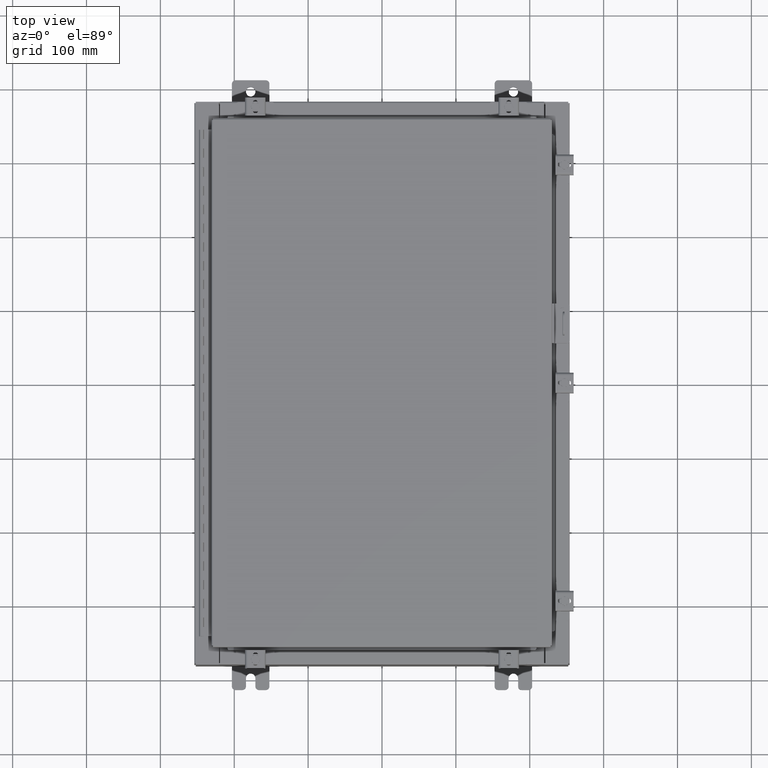
[diagram: clean part render]
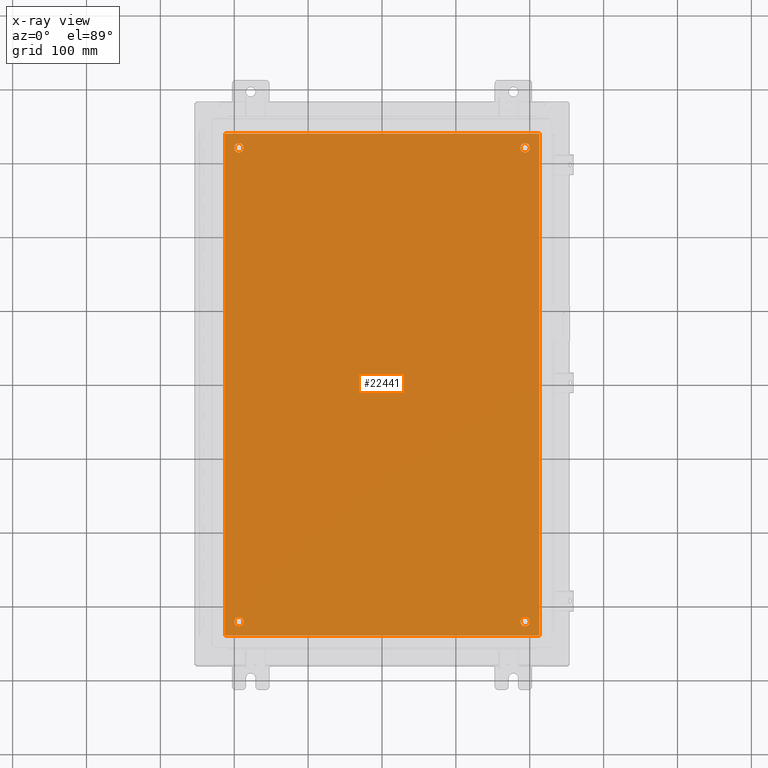
[diagram: x-ray — body ghosted, one internal face saturated and labeled with its STEP entity id]
A machine part, top view, then the same camera in x-ray: the body is ghosted and one INTERNAL B-rep face — a face not visible from any outside direction — is saturated and labeled: STEP entity #22441.
In plain terms, the highlighted planar face has unit normal (0, 0, -1).
Its self-contained STEP definition (entity closure, byte-faithful):
#374 = EDGE_CURVE ( 'NONE', #4440, #4452, #17238, .T. ) ;
#680 = CARTESIAN_POINT ( 'NONE',  ( -8.383000000000000900, 13.38300000000000100, -0.1039999999999999000 ) ) ;
#1036 = CARTESIAN_POINT ( 'NONE',  ( 7.375000000000004400, 12.62500000000000200, -0.1040000000000000400 ) ) ;
#1100 = EDGE_CURVE ( 'NONE', #34062, #16920, #17632, .T. ) ;
#1673 = DIRECTION ( 'NONE',  ( -0.0000000000000000000, -0.0000000000000000000, 1.000000000000000000 ) ) ;
#2214 = AXIS2_PLACEMENT_3D ( 'NONE', #30581, #33532, #15999 ) ;
#2646 = DIRECTION ( 'NONE',  ( -1.000000000000000000, 0.0000000000000000000, 0.0000000000000000000 ) ) ;
#2868 = FACE_BOUND ( 'NONE', #9368, .T. ) ;
#2986 = CARTESIAN_POINT ( 'NONE',  ( 7.625000000000002700, -12.62500000000000200, -0.1040000000000000400 ) ) ;
#3217 = EDGE_LOOP ( 'NONE', ( #3958, #23175 ) ) ;
#3937 = AXIS2_PLACEMENT_3D ( 'NONE', #8284, #28764, #11223 ) ;
#3958 = ORIENTED_EDGE ( 'NONE', *, *, #30971, .T. ) ;
#3971 = DIRECTION ( 'NONE',  ( -0.0000000000000000000, -0.0000000000000000000, 1.000000000000000000 ) ) ;
#4151 = AXIS2_PLACEMENT_3D ( 'NONE', #19226, #1673, #22175 ) ;
#4440 = VERTEX_POINT ( 'NONE', #680 ) ;
#4452 = VERTEX_POINT ( 'NONE', #18246 ) ;
#4549 = CARTESIAN_POINT ( 'NONE',  ( 7.875000000000001800, -12.62500000000000200, -0.1040000000000000400 ) ) ;
#5162 = CARTESIAN_POINT ( 'NONE',  ( -7.625000000000002700, -12.62500000000000200, -0.1040000000000000400 ) ) ;
#5842 = EDGE_CURVE ( 'NONE', #31358, #9799, #14614, .T. ) ;
#5845 = LINE ( 'NONE', #28348, #12752 ) ;
#5923 = DIRECTION ( 'NONE',  ( -1.000000000000000000, 0.0000000000000000000, 0.0000000000000000000 ) ) ;
#6072 = DIRECTION ( 'NONE',  ( 0.0000000000000000000, 1.000000000000000000, 0.0000000000000000000 ) ) ;
#6242 = EDGE_CURVE ( 'NONE', #4452, #16790, #9546, .T. ) ;
#6344 = EDGE_CURVE ( 'NONE', #32874, #4440, #5845, .T. ) ;
#6773 = CARTESIAN_POINT ( 'NONE',  ( 8.383000000000002700, -13.38299999999999200, -0.1039999999999992200 ) ) ;
#8159 = DIRECTION ( 'NONE',  ( -1.000000000000000000, 0.0000000000000000000, 0.0000000000000000000 ) ) ;
#8284 = CARTESIAN_POINT ( 'NONE',  ( -7.625000000000002700, 12.62500000000000200, -0.1040000000000000400 ) ) ;
#8664 = VERTEX_POINT ( 'NONE', #10429 ) ;
#9095 = CARTESIAN_POINT ( 'NONE',  ( 8.383000000000002700, 13.38300000000000100, -0.1039999999999992200 ) ) ;
#9185 = CARTESIAN_POINT ( 'NONE',  ( -7.375000000000003600, 12.62500000000000200, -0.1040000000000000400 ) ) ;
#9368 = EDGE_LOOP ( 'NONE', ( #12530, #25266 ) ) ;
#9546 = LINE ( 'NONE', #30917, #16425 ) ;
#9799 = VERTEX_POINT ( 'NONE', #22205 ) ;
#10099 = PLANE ( 'NONE',  #2214 ) ;
#10429 = CARTESIAN_POINT ( 'NONE',  ( -7.875000000000002700, 12.62500000000000200, -0.1040000000000000400 ) ) ;
#10699 = FACE_BOUND ( 'NONE', #12252, .T. ) ;
#10786 = CIRCLE ( 'NONE', #21874, 0.2499999999999998100 ) ;
#11223 = DIRECTION ( 'NONE',  ( -1.000000000000000000, 0.0000000000000000000, 0.0000000000000000000 ) ) ;
#12252 = EDGE_LOOP ( 'NONE', ( #16578, #35327 ) ) ;
#12530 = ORIENTED_EDGE ( 'NONE', *, *, #14082, .T. ) ;
#12675 = DIRECTION ( 'NONE',  ( -0.0000000000000000000, -0.0000000000000000000, 1.000000000000000000 ) ) ;
#12752 = VECTOR ( 'NONE', #31309, 39.37007874015748100 ) ;
#12961 = CARTESIAN_POINT ( 'NONE',  ( -7.625000000000002700, -12.62500000000000200, -0.1040000000000000400 ) ) ;
#13196 = EDGE_CURVE ( 'NONE', #9799, #31358, #37295, .T. ) ;
#13284 = EDGE_CURVE ( 'NONE', #34914, #20228, #18971, .T. ) ;
#13381 = DIRECTION ( 'NONE',  ( 1.000000000000000000, -0.0000000000000000000, -0.0000000000000000000 ) ) ;
#13945 = CARTESIAN_POINT ( 'NONE',  ( -7.875000000000002700, -12.62500000000000200, -0.1040000000000000400 ) ) ;
#14082 = EDGE_CURVE ( 'NONE', #28190, #8664, #19581, .T. ) ;
#14614 = CIRCLE ( 'NONE', #35162, 0.2499999999999998100 ) ;
#15916 = DIRECTION ( 'NONE',  ( -1.000000000000000000, 0.0000000000000000000, 0.0000000000000000000 ) ) ;
#15999 = DIRECTION ( 'NONE',  ( -1.000000000000000000, 0.0000000000000000000, -0.0000000000000000000 ) ) ;
#16298 = CIRCLE ( 'NONE', #26513, 0.2499999999999987000 ) ;
#16348 = VECTOR ( 'NONE', #33473, 39.37007874015748100 ) ;
#16425 = VECTOR ( 'NONE', #13381, 39.37007874015748100 ) ;
#16578 = ORIENTED_EDGE ( 'NONE', *, *, #26975, .T. ) ;
#16790 = VERTEX_POINT ( 'NONE', #6773 ) ;
#16920 = VERTEX_POINT ( 'NONE', #4549 ) ;
#17214 = EDGE_CURVE ( 'NONE', #16790, #32874, #18855, .T. ) ;
#17238 = LINE ( 'NONE', #30517, #16348 ) ;
#17632 = CIRCLE ( 'NONE', #36704, 0.2499999999999987000 ) ;
#18246 = CARTESIAN_POINT ( 'NONE',  ( -8.383000000000000900, -13.38299999999999400, -0.1040000000000008600 ) ) ;
#18855 = LINE ( 'NONE', #32210, #24831 ) ;
#18971 = CIRCLE ( 'NONE', #4151, 0.2499999999999987000 ) ;
#19226 = CARTESIAN_POINT ( 'NONE',  ( 7.625000000000002700, 12.62500000000000200, -0.1040000000000000400 ) ) ;
#19394 = FACE_BOUND ( 'NONE', #3217, .T. ) ;
#19403 = ORIENTED_EDGE ( 'NONE', *, *, #13196, .T. ) ;
#19581 = CIRCLE ( 'NONE', #3937, 0.2499999999999998100 ) ;
#19858 = CARTESIAN_POINT ( 'NONE',  ( 7.875000000000001800, 12.62500000000000200, -0.1040000000000000400 ) ) ;
#20003 = AXIS2_PLACEMENT_3D ( 'NONE', #2986, #23485, #5923 ) ;
#20092 = EDGE_LOOP ( 'NONE', ( #19403, #37784 ) ) ;
#20200 = DIRECTION ( 'NONE',  ( -0.0000000000000000000, -0.0000000000000000000, 1.000000000000000000 ) ) ;
#20228 = VERTEX_POINT ( 'NONE', #19858 ) ;
#21543 = CARTESIAN_POINT ( 'NONE',  ( 7.625000000000002700, -12.62500000000000200, -0.1040000000000000400 ) ) ;
#21874 = AXIS2_PLACEMENT_3D ( 'NONE', #30195, #12675, #33155 ) ;
#22175 = DIRECTION ( 'NONE',  ( -1.000000000000000000, 0.0000000000000000000, 0.0000000000000000000 ) ) ;
#22205 = CARTESIAN_POINT ( 'NONE',  ( -7.375000000000003600, -12.62500000000000200, -0.1040000000000000400 ) ) ;
#22441 = ADVANCED_FACE ( 'NONE', ( #26251, #10699, #19394, #2868, #33140 ), #10099, .T. ) ;
#23175 = ORIENTED_EDGE ( 'NONE', *, *, #13284, .T. ) ;
#23485 = DIRECTION ( 'NONE',  ( -0.0000000000000000000, -0.0000000000000000000, 1.000000000000000000 ) ) ;
#24478 = DIRECTION ( 'NONE',  ( -1.000000000000000000, 0.0000000000000000000, 0.0000000000000000000 ) ) ;
#24831 = VECTOR ( 'NONE', #6072, 39.37007874015748100 ) ;
#25266 = ORIENTED_EDGE ( 'NONE', *, *, #31121, .T. ) ;
#25477 = EDGE_LOOP ( 'NONE', ( #29878, #32995, #29259, #31822 ) ) ;
#25678 = DIRECTION ( 'NONE',  ( -0.0000000000000000000, -0.0000000000000000000, 1.000000000000000000 ) ) ;
#26251 = FACE_BOUND ( 'NONE', #20092, .T. ) ;
#26513 = AXIS2_PLACEMENT_3D ( 'NONE', #37709, #20200, #2646 ) ;
#26906 = CIRCLE ( 'NONE', #20003, 0.2499999999999987000 ) ;
#26975 = EDGE_CURVE ( 'NONE', #16920, #34062, #26906, .T. ) ;
#28190 = VERTEX_POINT ( 'NONE', #9185 ) ;
#28348 = CARTESIAN_POINT ( 'NONE',  ( 8.500000000000001800, 13.38300000000000300, -0.1040000000000008600 ) ) ;
#28469 = AXIS2_PLACEMENT_3D ( 'NONE', #12961, #33450, #15916 ) ;
#28764 = DIRECTION ( 'NONE',  ( -0.0000000000000000000, -0.0000000000000000000, 1.000000000000000000 ) ) ;
#29259 = ORIENTED_EDGE ( 'NONE', *, *, #6344, .F. ) ;
#29878 = ORIENTED_EDGE ( 'NONE', *, *, #6242, .F. ) ;
#30195 = CARTESIAN_POINT ( 'NONE',  ( -7.625000000000002700, 12.62500000000000200, -0.1040000000000000400 ) ) ;
#30517 = CARTESIAN_POINT ( 'NONE',  ( -8.383000000000000900, 13.38300000000000100, -0.1039999999999999000 ) ) ;
#30581 = CARTESIAN_POINT ( 'NONE',  ( 0.0000000000000000000, 0.0000000000000000000, -0.1040000000000000400 ) ) ;
#30917 = CARTESIAN_POINT ( 'NONE',  ( -8.500000000000000000, -13.38299999999999400, -0.1040000000000008600 ) ) ;
#30971 = EDGE_CURVE ( 'NONE', #20228, #34914, #16298, .T. ) ;
#31121 = EDGE_CURVE ( 'NONE', #8664, #28190, #10786, .T. ) ;
#31309 = DIRECTION ( 'NONE',  ( -1.000000000000000000, -0.0000000000000000000, -0.0000000000000000000 ) ) ;
#31358 = VERTEX_POINT ( 'NONE', #13945 ) ;
#31822 = ORIENTED_EDGE ( 'NONE', *, *, #17214, .F. ) ;
#32210 = CARTESIAN_POINT ( 'NONE',  ( 8.383000000000002700, -13.38299999999999200, -0.1039999999999992200 ) ) ;
#32874 = VERTEX_POINT ( 'NONE', #9095 ) ;
#32995 = ORIENTED_EDGE ( 'NONE', *, *, #374, .F. ) ;
#33140 = FACE_OUTER_BOUND ( 'NONE', #25477, .T. ) ;
#33155 = DIRECTION ( 'NONE',  ( -1.000000000000000000, 0.0000000000000000000, 0.0000000000000000000 ) ) ;
#33450 = DIRECTION ( 'NONE',  ( -0.0000000000000000000, -0.0000000000000000000, 1.000000000000000000 ) ) ;
#33473 = DIRECTION ( 'NONE',  ( 0.0000000000000000000, -1.000000000000000000, 0.0000000000000000000 ) ) ;
#33532 = DIRECTION ( 'NONE',  ( 0.0000000000000000000, 0.0000000000000000000, -1.000000000000000000 ) ) ;
#34062 = VERTEX_POINT ( 'NONE', #35747 ) ;
#34914 = VERTEX_POINT ( 'NONE', #1036 ) ;
#35162 = AXIS2_PLACEMENT_3D ( 'NONE', #5162, #25678, #8159 ) ;
#35327 = ORIENTED_EDGE ( 'NONE', *, *, #1100, .T. ) ;
#35747 = CARTESIAN_POINT ( 'NONE',  ( 7.375000000000004400, -12.62500000000000200, -0.1040000000000000400 ) ) ;
#36704 = AXIS2_PLACEMENT_3D ( 'NONE', #21543, #3971, #24478 ) ;
#37295 = CIRCLE ( 'NONE', #28469, 0.2499999999999998100 ) ;
#37709 = CARTESIAN_POINT ( 'NONE',  ( 7.625000000000002700, 12.62500000000000200, -0.1040000000000000400 ) ) ;
#37784 = ORIENTED_EDGE ( 'NONE', *, *, #5842, .T. ) ;